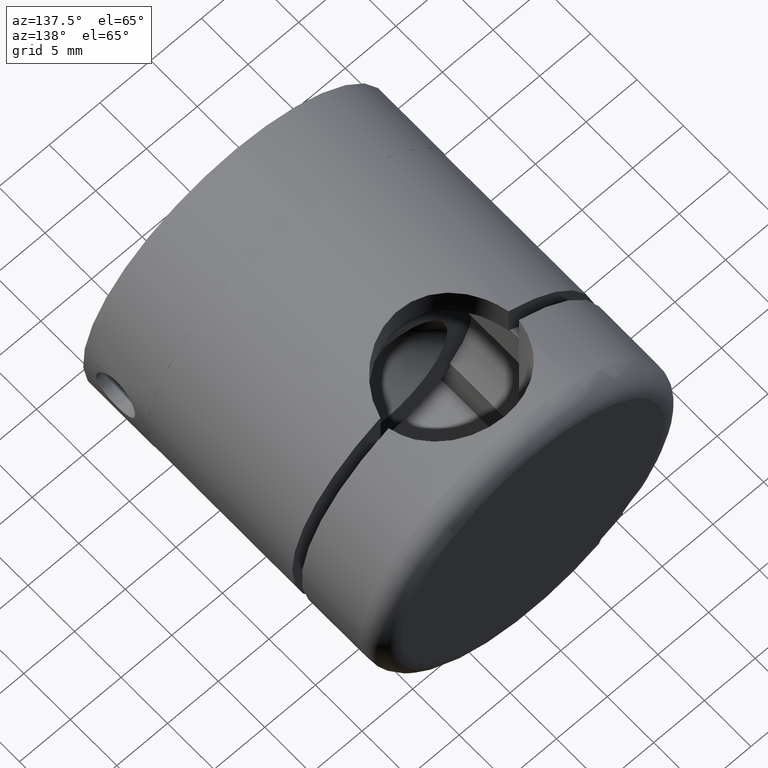
[diagram: clean part render]
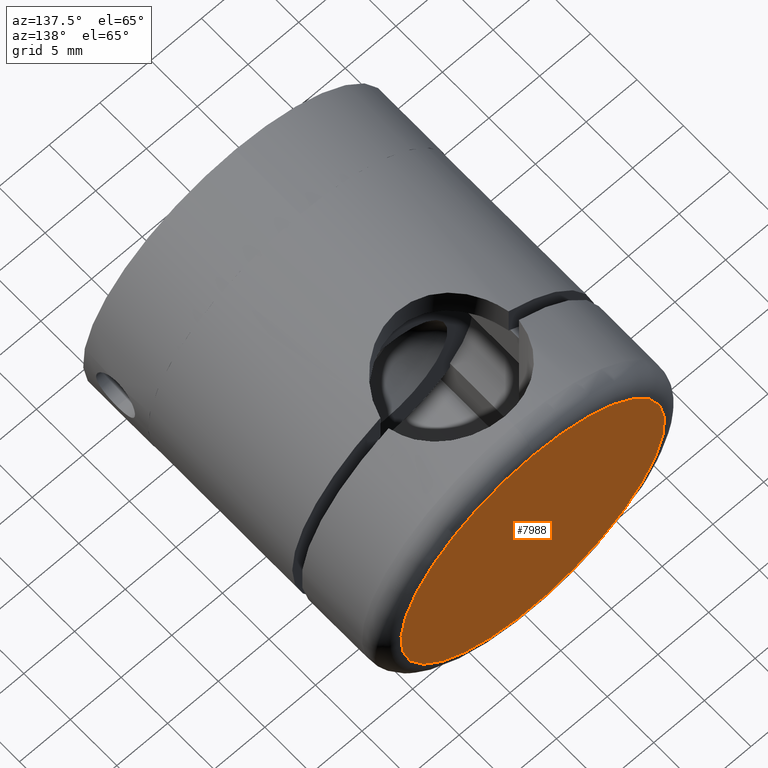
[diagram: same view with one face highlighted and labeled with its STEP entity id]
A machine part, auxiliary view. The second image highlights one B-rep face of the part: STEP entity #7988.
In plain terms, the highlighted planar face has unit normal (0, 1, 0).
Its self-contained STEP definition (entity closure, byte-faithful):
#1674 = EDGE_LOOP ( 'NONE', ( #4595 ) ) ;
#4266 = DIRECTION ( 'NONE',  ( 0.0000000000000000000, -1.000000000000000000, 0.0000000000000000000 ) ) ;
#4595 = ORIENTED_EDGE ( 'NONE', *, *, #12371, .T. ) ;
#5152 = CIRCLE ( 'NONE', #15468, 13.00000000000000000 ) ;
#5158 = DIRECTION ( 'NONE',  ( 0.0000000000000000000, -1.000000000000000000, 0.0000000000000000000 ) ) ;
#7681 = PLANE ( 'NONE',  #10991 ) ;
#7988 = ADVANCED_FACE ( 'NONE', ( #8587 ), #7681, .T. ) ;
#8587 = FACE_OUTER_BOUND ( 'NONE', #1674, .T. ) ;
#10991 = AXIS2_PLACEMENT_3D ( 'NONE', #11619, #5158, #12963 ) ;
#11619 = CARTESIAN_POINT ( 'NONE',  ( 0.0000000000000000000, 1.500000000000000000, 0.0000000000000000000 ) ) ;
#12371 = EDGE_CURVE ( 'NONE', #15679, #15679, #5152, .T. ) ;
#12963 = DIRECTION ( 'NONE',  ( 0.0000000000000000000, -0.0000000000000000000, -1.000000000000000000 ) ) ;
#14933 = DIRECTION ( 'NONE',  ( 0.0000000000000000000, 0.0000000000000000000, -1.000000000000000000 ) ) ;
#15100 = CARTESIAN_POINT ( 'NONE',  ( 0.0000000000000000000, 1.500000000000000000, -13.00000000000000000 ) ) ;
#15468 = AXIS2_PLACEMENT_3D ( 'NONE', #16228, #4266, #14933 ) ;
#15679 = VERTEX_POINT ( 'NONE', #15100 ) ;
#16228 = CARTESIAN_POINT ( 'NONE',  ( 0.0000000000000000000, 1.500000000000000000, 0.0000000000000000000 ) ) ;